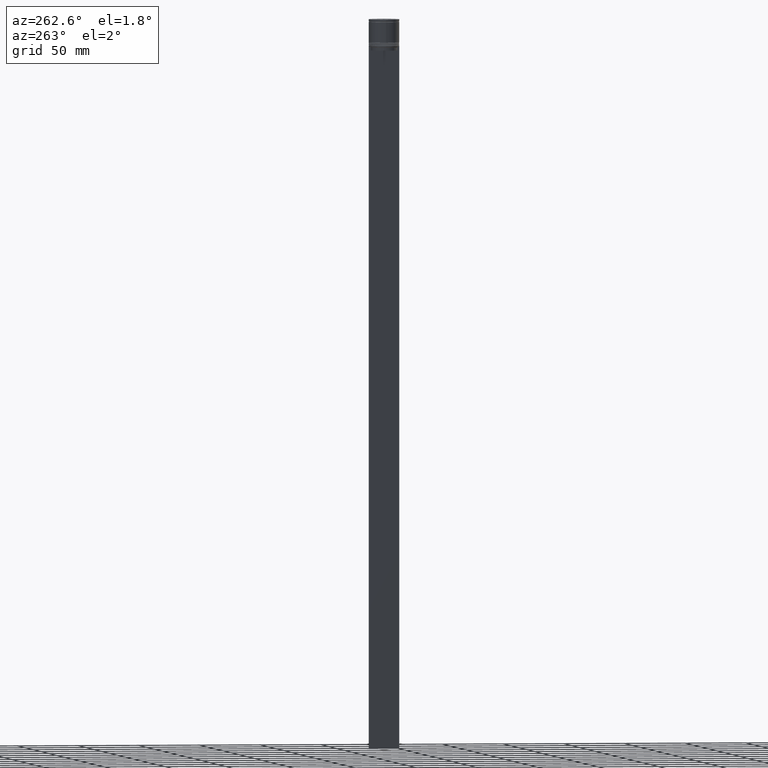
[diagram: clean part render]
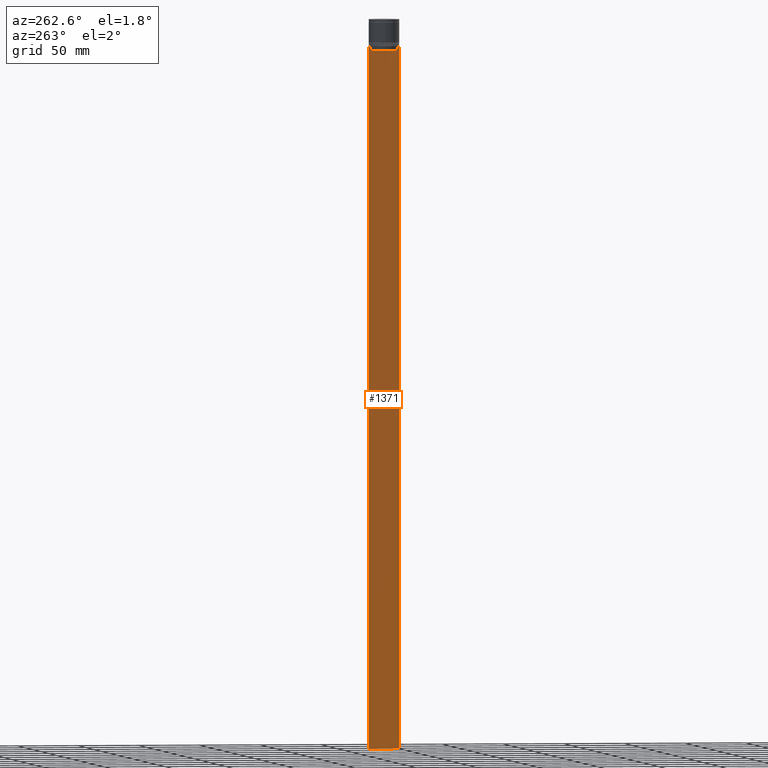
[diagram: same view with one face highlighted and labeled with its STEP entity id]
A machine part, auxiliary view. The second image highlights one B-rep face of the part: STEP entity #1371.
In plain terms, the highlighted planar face has unit normal (-1, 0, 0).
Its self-contained STEP definition (entity closure, byte-faithful):
#5 = CARTESIAN_POINT ( 'NONE',  ( -0.5000000000000000000, -12.49999999999999289, -22.50000000000000000 ) ) ;
#31 = VECTOR ( 'NONE', #888, 1000.000000000000000 ) ;
#40 = CARTESIAN_POINT ( 'NONE',  ( -0.5000000000000000000, -10.88852607105297032, -22.99999999999999645 ) ) ;
#45 = ORIENTED_EDGE ( 'NONE', *, *, #792, .F. ) ;
#53 = EDGE_CURVE ( 'NONE', #546, #110, #951, .T. ) ;
#64 = CARTESIAN_POINT ( 'NONE',  ( -0.5000000000000000000, -11.38902980942626897, -22.50000000000000000 ) ) ;
#69 = VECTOR ( 'NONE', #372, 1000.000000000000000 ) ;
#84 = B_SPLINE_CURVE_WITH_KNOTS ( 'NONE', 3,
 ( #173, #1472, #1159, #1499 ),
 .UNSPECIFIED., .F., .F.,
 ( 4, 4 ),
 ( 0.01935560801904635808, 0.02006307108468587813 ),
 .UNSPECIFIED. ) ;
#110 = VERTEX_POINT ( 'NONE', #210 ) ;
#152 = DIRECTION ( 'NONE',  ( 0.000000000000000000, -1.000000000000000000, 0.000000000000000000 ) ) ;
#173 = CARTESIAN_POINT ( 'NONE',  ( -0.5000000000000000000, 11.38902980942626897, -22.50000000000000000 ) ) ;
#209 = LINE ( 'NONE', #1190, #845 ) ;
#210 = CARTESIAN_POINT ( 'NONE',  ( -0.5000000000000000000, -11.38902980942626897, -22.50000000000000000 ) ) ;
#216 = CARTESIAN_POINT ( 'NONE',  ( -0.5000000000000000000, 11.38902980942626897, -22.50000000000000000 ) ) ;
#238 = CARTESIAN_POINT ( 'NONE',  ( -0.5000000000000000000, -12.49999999999999289, 2.519992006393609874 ) ) ;
#321 = ORIENTED_EDGE ( 'NONE', *, *, #1500, .F. ) ;
#333 = DIRECTION ( 'NONE',  ( 0.000000000000000000, -1.000000000000000000, 0.000000000000000000 ) ) ;
#359 = VERTEX_POINT ( 'NONE', #1625 ) ;
#372 = DIRECTION ( 'NONE',  ( 0.000000000000000000, -1.000000000000000000, 0.000000000000000000 ) ) ;
#407 = VECTOR ( 'NONE', #885, 1000.000000000000000 ) ;
#461 = VERTEX_POINT ( 'NONE', #216 ) ;
#467 = ORIENTED_EDGE ( 'NONE', *, *, #1309, .F. ) ;
#502 = VERTEX_POINT ( 'NONE', #1369 ) ;
#519 = CARTESIAN_POINT ( 'NONE',  ( -0.5000000000000000000, 10.88852607105297032, 0.000000000000000000 ) ) ;
#529 = CARTESIAN_POINT ( 'NONE',  ( -0.5000000000000000000, -11.22219891450653151, -22.66667035398018726 ) ) ;
#546 = VERTEX_POINT ( 'NONE', #40 ) ;
#562 = LINE ( 'NONE', #1831, #407 ) ;
#576 = LINE ( 'NONE', #1861, #1584 ) ;
#598 = ORIENTED_EDGE ( 'NONE', *, *, #2005, .F. ) ;
#631 = VERTEX_POINT ( 'NONE', #1557 ) ;
#642 = VECTOR ( 'NONE', #333, 1000.000000000000000 ) ;
#660 = DIRECTION ( 'NONE',  ( 0.000000000000000000, -1.000000000000000000, 0.000000000000000000 ) ) ;
#664 = CARTESIAN_POINT ( 'NONE',  ( -0.5000000000000000000, 10.88852607105297032, -22.99999999999999645 ) ) ;
#668 = DIRECTION ( 'NONE',  ( 0.000000000000000000, 0.000000000000000000, -1.000000000000000000 ) ) ;
#672 = CARTESIAN_POINT ( 'NONE',  ( -0.5000000000000000000, -12.49999999999999289, -22.50000000000000000 ) ) ;
#676 = LINE ( 'NONE', #1958, #1078 ) ;
#701 = CARTESIAN_POINT ( 'NONE',  ( -0.5000000000000000000, -12.38991525394746596, -22.50000000000000000 ) ) ;
#735 = ORIENTED_EDGE ( 'NONE', *, *, #1212, .F. ) ;
#757 = DIRECTION ( 'NONE',  ( 0.000000000000000000, 0.000000000000000000, 1.000000000000000000 ) ) ;
#760 = EDGE_CURVE ( 'NONE', #359, #1395, #832, .T. ) ;
#780 = CARTESIAN_POINT ( 'NONE',  ( -0.5000000000000000000, 12.50000000000000711, -22.50000000000000000 ) ) ;
#792 = EDGE_CURVE ( 'NONE', #1097, #461, #676, .T. ) ;
#795 = ORIENTED_EDGE ( 'NONE', *, *, #1239, .T. ) ;
#817 = LINE ( 'NONE', #5, #878 ) ;
#831 = ORIENTED_EDGE ( 'NONE', *, *, #1173, .F. ) ;
#832 = LINE ( 'NONE', #1766, #642 ) ;
#845 = VECTOR ( 'NONE', #1060, 1000.000000000000000 ) ;
#878 = VECTOR ( 'NONE', #660, 1000.000000000000000 ) ;
#885 = DIRECTION ( 'NONE',  ( 0.000000000000000000, 0.000000000000000000, -1.000000000000000000 ) ) ;
#888 = DIRECTION ( 'NONE',  ( 0.000000000000000000, 0.000000000000000000, -1.000000000000000000 ) ) ;
#905 = ORIENTED_EDGE ( 'NONE', *, *, #1451, .F. ) ;
#945 = CARTESIAN_POINT ( 'NONE',  ( -0.5000000000000000000, -12.49999999999999289, 2.519992006393609874 ) ) ;
#946 = EDGE_CURVE ( 'NONE', #502, #1788, #1694, .T. ) ;
#951 = B_SPLINE_CURVE_WITH_KNOTS ( 'NONE', 3,
 ( #1224, #1506, #529, #64 ),
 .UNSPECIFIED., .F., .F.,
 ( 4, 4 ),
 ( 0.05041323384703231408, 0.05112713601261610619 ),
 .UNSPECIFIED. ) ;
#1009 = VERTEX_POINT ( 'NONE', #780 ) ;
#1030 = CARTESIAN_POINT ( 'NONE',  ( -0.5000000000000000000, -12.49999999999999289, -596.4999999999998863 ) ) ;
#1060 = DIRECTION ( 'NONE',  ( 0.000000000000000000, 1.000000000000000000, 0.000000000000000000 ) ) ;
#1078 = VECTOR ( 'NONE', #152, 1000.000000000000000 ) ;
#1083 = ORIENTED_EDGE ( 'NONE', *, *, #53, .F. ) ;
#1085 = FACE_OUTER_BOUND ( 'NONE', #2008, .T. ) ;
#1097 = VERTEX_POINT ( 'NONE', #1463 ) ;
#1105 = CARTESIAN_POINT ( 'NONE',  ( -0.5000000000000000000, -10.88852607105297032, 0.000000000000000000 ) ) ;
#1129 = VERTEX_POINT ( 'NONE', #664 ) ;
#1145 = LINE ( 'NONE', #519, #1419 ) ;
#1159 = CARTESIAN_POINT ( 'NONE',  ( -0.5000000000000000000, 11.05536450345590715, -22.83333719074559554 ) ) ;
#1173 = EDGE_CURVE ( 'NONE', #461, #1129, #84, .T. ) ;
#1179 = LINE ( 'NONE', #672, #69 ) ;
#1190 = CARTESIAN_POINT ( 'NONE',  ( -0.5000000000000000000, -12.49999999999999289, -596.4999999999998863 ) ) ;
#1212 = EDGE_CURVE ( 'NONE', #1009, #1097, #1179, .T. ) ;
#1224 = CARTESIAN_POINT ( 'NONE',  ( -0.5000000000000000000, -10.88852607105297032, -22.99999999999999645 ) ) ;
#1239 = EDGE_CURVE ( 'NONE', #1009, #631, #562, .T. ) ;
#1309 = EDGE_CURVE ( 'NONE', #110, #1677, #576, .T. ) ;
#1343 = ORIENTED_EDGE ( 'NONE', *, *, #946, .F. ) ;
#1369 = CARTESIAN_POINT ( 'NONE',  ( -0.5000000000000000000, -12.49999999999999289, -22.50000000000000000 ) ) ;
#1371 = ADVANCED_FACE ( 'NONE', ( #1085 ), #1921, .T. ) ;
#1386 = VECTOR ( 'NONE', #1907, 1000.000000000000000 ) ;
#1395 = VERTEX_POINT ( 'NONE', #1762 ) ;
#1419 = VECTOR ( 'NONE', #668, 1000.000000000000000 ) ;
#1436 = LINE ( 'NONE', #1105, #1386 ) ;
#1451 = EDGE_CURVE ( 'NONE', #1395, #546, #1436, .T. ) ;
#1463 = CARTESIAN_POINT ( 'NONE',  ( -0.5000000000000000000, 12.38991525394746596, -22.50000000000000000 ) ) ;
#1472 = CARTESIAN_POINT ( 'NONE',  ( -0.5000000000000000000, 11.22219891375843126, -22.66667035472756808 ) ) ;
#1499 = CARTESIAN_POINT ( 'NONE',  ( -0.5000000000000000000, 10.88852607105297032, -22.99999999999999645 ) ) ;
#1500 = EDGE_CURVE ( 'NONE', #1129, #359, #1145, .T. ) ;
#1506 = CARTESIAN_POINT ( 'NONE',  ( -0.5000000000000000000, -11.05536450423839412, -22.83333718996392747 ) ) ;
#1507 = DIRECTION ( 'NONE',  ( 0.000000000000000000, -1.000000000000000000, 0.000000000000000000 ) ) ;
#1557 = CARTESIAN_POINT ( 'NONE',  ( -0.5000000000000000000, 12.50000000000000711, -596.4999999999998863 ) ) ;
#1570 = DIRECTION ( 'NONE',  ( -1.000000000000000000, 0.000000000000000000, 0.000000000000000000 ) ) ;
#1584 = VECTOR ( 'NONE', #1507, 1000.000000000000000 ) ;
#1625 = CARTESIAN_POINT ( 'NONE',  ( -0.5000000000000000000, 10.88852607105296855, -25.50000000000000000 ) ) ;
#1677 = VERTEX_POINT ( 'NONE', #701 ) ;
#1682 = EDGE_CURVE ( 'NONE', #1788, #631, #209, .T. ) ;
#1688 = AXIS2_PLACEMENT_3D ( 'NONE', #945, #1570, #757 ) ;
#1694 = LINE ( 'NONE', #238, #31 ) ;
#1762 = CARTESIAN_POINT ( 'NONE',  ( -0.5000000000000000000, -10.88852607105296855, -25.50000000000000000 ) ) ;
#1766 = CARTESIAN_POINT ( 'NONE',  ( -0.5000000000000000000, 10.90000000000000924, -25.50000000000000000 ) ) ;
#1788 = VERTEX_POINT ( 'NONE', #1030 ) ;
#1831 = CARTESIAN_POINT ( 'NONE',  ( -0.5000000000000000000, 12.50000000000000711, 2.519992006393609874 ) ) ;
#1861 = CARTESIAN_POINT ( 'NONE',  ( -0.5000000000000000000, -12.49999999999999289, -22.50000000000000000 ) ) ;
#1907 = DIRECTION ( 'NONE',  ( -0.000000000000000000, -0.000000000000000000, 1.000000000000000000 ) ) ;
#1921 = PLANE ( 'NONE',  #1688 ) ;
#1922 = ORIENTED_EDGE ( 'NONE', *, *, #760, .F. ) ;
#1929 = ORIENTED_EDGE ( 'NONE', *, *, #1682, .F. ) ;
#1958 = CARTESIAN_POINT ( 'NONE',  ( -0.5000000000000000000, -12.49999999999999289, -22.50000000000000000 ) ) ;
#2005 = EDGE_CURVE ( 'NONE', #1677, #502, #817, .T. ) ;
#2008 = EDGE_LOOP ( 'NONE', ( #831, #45, #735, #795, #1929, #1343, #598, #467, #1083, #905, #1922, #321 ) ) ;